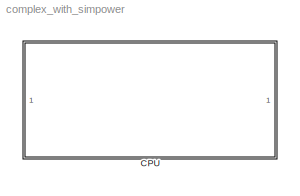
MODEL complex_with_simpower
KIND model
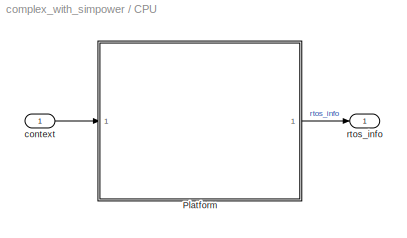
BLOCK [SubSystem] CPU
  FunctionWithSeparateData = off
  InitFcn = % Get Ts parameter                      \nTs =compSys.util.getSimulationStepTime(bdroot(gcbh));\n                                        \nupdateRtosBlk(gcbh);
  MaskHideContents = off
  MinAlgLoopOccurrences = off
  Opaque = off
  Ports = [1, 1]
  PropExecContextOutsideSubsystem = off
  RTWSystemCode = Auto
  RequestExecContextInheritance = off
  SID = 1
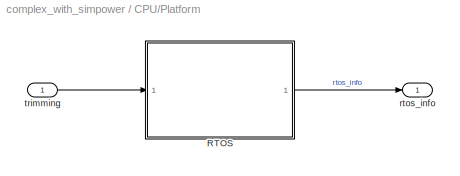
BLOCK [SubSystem] CPU/Platform
  FunctionWithSeparateData = off
  MaskHideContents = off
  MinAlgLoopOccurrences = off
  Opaque = off
  Ports = [1, 1]
  Priority = 0
  PropExecContextOutsideSubsystem = off
  RTWSystemCode = Auto
  RequestExecContextInheritance = off
  SID = 7
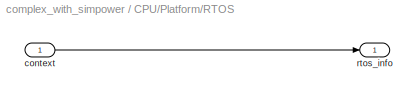
BLOCK [SubSystem] CPU/Platform/RTOS
  FunctionWithSeparateData = off
  MaskHideContents = off
  MinAlgLoopOccurrences = off
  Opaque = off
  Ports = [1, 1]
  PropExecContextOutsideSubsystem = off
  RTWSystemCode = Auto
  RequestExecContextInheritance = off
  SID = 28
BLOCK [Inport] CPU/Platform/RTOS/context
  IconDisplay = Port number
  SID = 74
BLOCK [Outport] CPU/Platform/RTOS/rtos_info
  IconDisplay = Port number
  SID = 77
BLOCK [Outport] CPU/Platform/rtos_info
  IconDisplay = Port number
  SID = 29
BLOCK [Inport] CPU/Platform/trimming
  IconDisplay = Port number
  SID = 11
BLOCK [Inport] CPU/context
  IconDisplay = Port number
  SID = 95
BLOCK [Outport] CPU/rtos_info
  IconDisplay = Port number
  SID = 96
LINE CPU/Platform/RTOS/context:1 -> CPU/Platform/RTOS/rtos_info:1
LINE CPU/Platform/RTOS:1 -> CPU/Platform/rtos_info:1
LINE CPU/Platform/trimming:1 -> CPU/Platform/RTOS:1
LINE CPU/Platform:1 -> CPU/rtos_info:1
LINE CPU/context:1 -> CPU/Platform:1
